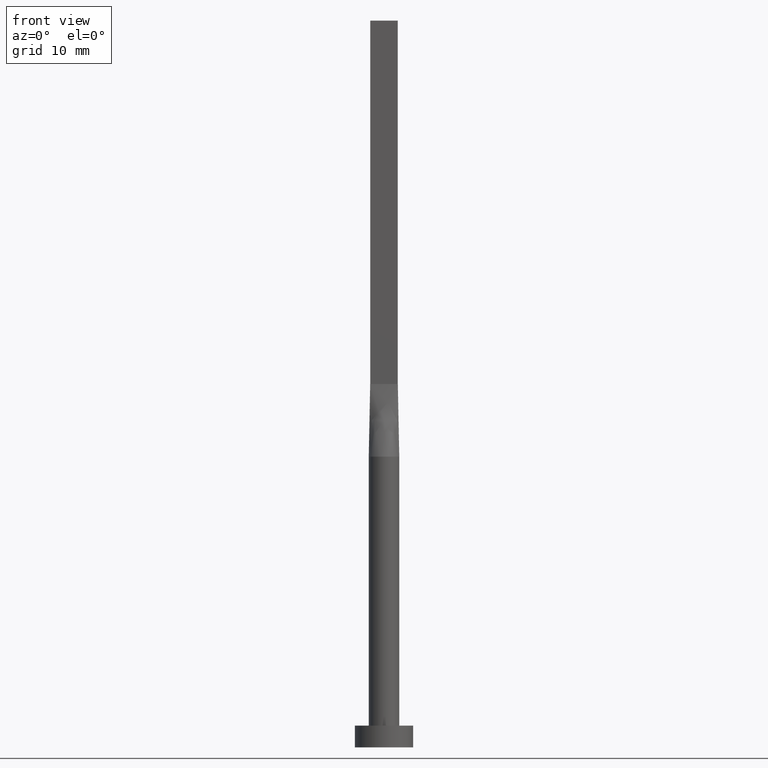
[diagram: clean part render]
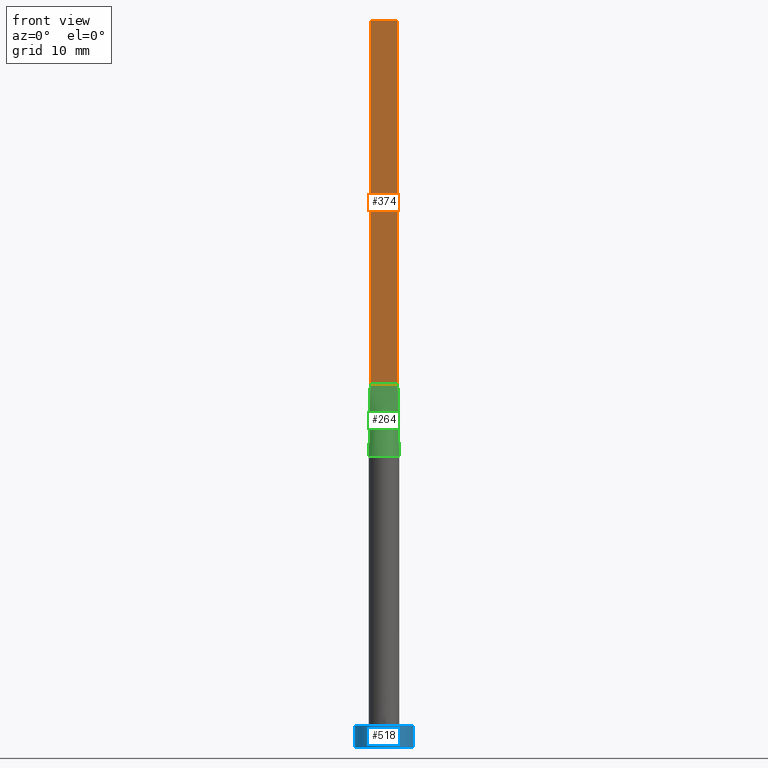
[diagram: same view with three faces highlighted in distinct colors, each labeled with its STEP entity id]
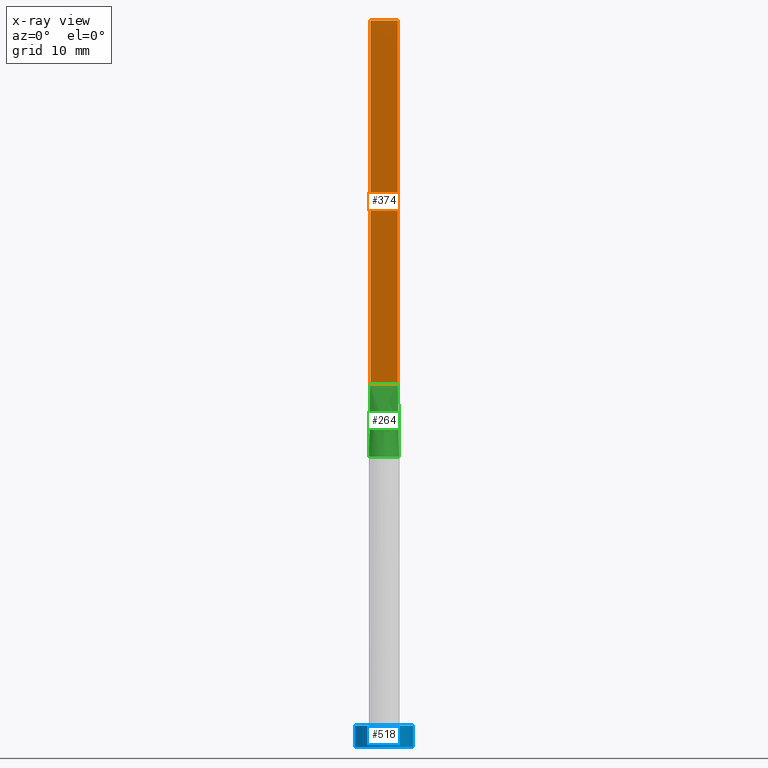
[diagram: x-ray of the same camera — body ghosted, the three highlighted faces saturated]
A machine part, front view with three faces highlighted in distinct colors.
The next image is the same camera in x-ray (body ghosted, the three faces saturated) — at least one of them is partly hidden behind the body in this view.
Their STEP definitions:

[orange] entity #374 — the highlighted planar face has unit normal (0, 1, -0).
#38 = CARTESIAN_POINT ( 'NONE',  ( -1.899999999999999911, -0.2499999999999995837, 100.0000000000000000 ) ) ;
#48 = EDGE_CURVE ( 'NONE', #213, #293, #372, .T. ) ;
#61 = ORIENTED_EDGE ( 'NONE', *, *, #208, .F. ) ;
#83 = LINE ( 'NONE', #453, #114 ) ;
#114 = VECTOR ( 'NONE', #500, 1000.000000000000000 ) ;
#117 = CARTESIAN_POINT ( 'NONE',  ( -1.899999999999999911, -0.2499999999999995837, 100.0000000000000000 ) ) ;
#155 = ORIENTED_EDGE ( 'NONE', *, *, #48, .F. ) ;
#165 = EDGE_CURVE ( 'NONE', #213, #467, #191, .T. ) ;
#184 = VECTOR ( 'NONE', #261, 1000.000000000000000 ) ;
#191 = LINE ( 'NONE', #367, #275 ) ;
#192 = PLANE ( 'NONE',  #319 ) ;
#208 = EDGE_CURVE ( 'NONE', #293, #212, #488, .T. ) ;
#212 = VERTEX_POINT ( 'NONE', #387 ) ;
#213 = VERTEX_POINT ( 'NONE', #117 ) ;
#234 = CARTESIAN_POINT ( 'NONE',  ( 1.899999999999999023, -0.2499999999999997780, 100.0000000000000000 ) ) ;
#261 = DIRECTION ( 'NONE',  ( -0.000000000000000000, -0.000000000000000000, -1.000000000000000000 ) ) ;
#270 = DIRECTION ( 'NONE',  ( -1.000000000000000000, 5.706327223607920020E-17, 0.000000000000000000 ) ) ;
#275 = VECTOR ( 'NONE', #318, 1000.000000000000000 ) ;
#291 = EDGE_CURVE ( 'NONE', #467, #212, #83, .T. ) ;
#293 = VERTEX_POINT ( 'NONE', #234 ) ;
#295 = VECTOR ( 'NONE', #324, 1000.000000000000000 ) ;
#296 = ORIENTED_EDGE ( 'NONE', *, *, #291, .T. ) ;
#318 = DIRECTION ( 'NONE',  ( -0.000000000000000000, -0.000000000000000000, -1.000000000000000000 ) ) ;
#319 = AXIS2_PLACEMENT_3D ( 'NONE', #38, #368, #270 ) ;
#324 = DIRECTION ( 'NONE',  ( 1.000000000000000000, -5.706327223607920020E-17, 0.000000000000000000 ) ) ;
#337 = CARTESIAN_POINT ( 'NONE',  ( 1.899999999999999023, -0.2499999999999997780, 100.0000000000000000 ) ) ;
#367 = CARTESIAN_POINT ( 'NONE',  ( -1.899999999999999911, -0.2499999999999995837, 100.0000000000000000 ) ) ;
#368 = DIRECTION ( 'NONE',  ( 5.706327223607920020E-17, 1.000000000000000000, -0.000000000000000000 ) ) ;
#372 = LINE ( 'NONE', #550, #295 ) ;
#374 = ADVANCED_FACE ( 'NONE', ( #398 ), #192, .F. ) ;
#387 = CARTESIAN_POINT ( 'NONE',  ( 1.899999999999999023, -0.2499999999999997780, 50.00000000000000000 ) ) ;
#398 = FACE_OUTER_BOUND ( 'NONE', #426, .T. ) ;
#399 = ORIENTED_EDGE ( 'NONE', *, *, #165, .T. ) ;
#426 = EDGE_LOOP ( 'NONE', ( #296, #61, #155, #399 ) ) ;
#453 = CARTESIAN_POINT ( 'NONE',  ( -1.899999999999999911, -0.2499999999999995837, 50.00000000000000000 ) ) ;
#467 = VERTEX_POINT ( 'NONE', #547 ) ;
#488 = LINE ( 'NONE', #337, #184 ) ;
#500 = DIRECTION ( 'NONE',  ( 1.000000000000000000, -5.706327223607918787E-17, 0.000000000000000000 ) ) ;
#547 = CARTESIAN_POINT ( 'NONE',  ( -1.899999999999999911, -0.2499999999999995837, 50.00000000000000000 ) ) ;
#550 = CARTESIAN_POINT ( 'NONE',  ( -1.899999999999999911, -0.2499999999999995837, 100.0000000000000000 ) ) ;

[blue] entity #518 — the highlighted cylindrical surface (edge-blend (fillet) strip) has radius 4 mm, axis along (-0, -0, -1).
#5 = DIRECTION ( 'NONE',  ( -0.000000000000000000, -0.000000000000000000, -1.000000000000000000 ) ) ;
#35 = CARTESIAN_POINT ( 'NONE',  ( 0.000000000000000000, 0.000000000000000000, 3.000000000000000000 ) ) ;
#42 = VERTEX_POINT ( 'NONE', #280 ) ;
#56 = DIRECTION ( 'NONE',  ( 1.000000000000000000, 0.000000000000000000, 0.000000000000000000 ) ) ;
#58 = VERTEX_POINT ( 'NONE', #513 ) ;
#66 = CYLINDRICAL_SURFACE ( 'NONE', #403, 4.000000000000000000 ) ;
#67 = EDGE_CURVE ( 'NONE', #42, #441, #141, .T. ) ;
#78 = FACE_OUTER_BOUND ( 'NONE', #101, .T. ) ;
#97 = CARTESIAN_POINT ( 'NONE',  ( 0.000000000000000000, 0.000000000000000000, 3.000000000000000000 ) ) ;
#99 = VECTOR ( 'NONE', #404, 1000.000000000000000 ) ;
#101 = EDGE_LOOP ( 'NONE', ( #414, #430, #313, #288 ) ) ;
#112 = LINE ( 'NONE', #459, #99 ) ;
#131 = CARTESIAN_POINT ( 'NONE',  ( 4.000000000000000000, 4.898587196589412829E-16, 0.000000000000000000 ) ) ;
#135 = LINE ( 'NONE', #229, #238 ) ;
#141 = CIRCLE ( 'NONE', #360, 4.000000000000000000 ) ;
#158 = DIRECTION ( 'NONE',  ( -0.000000000000000000, -0.000000000000000000, -1.000000000000000000 ) ) ;
#170 = DIRECTION ( 'NONE',  ( -1.000000000000000000, 0.000000000000000000, 0.000000000000000000 ) ) ;
#187 = EDGE_CURVE ( 'NONE', #441, #440, #112, .T. ) ;
#229 = CARTESIAN_POINT ( 'NONE',  ( -4.000000000000000000, 0.000000000000000000, 3.000000000000000000 ) ) ;
#238 = VECTOR ( 'NONE', #5, 1000.000000000000000 ) ;
#280 = CARTESIAN_POINT ( 'NONE',  ( -4.000000000000000000, 0.000000000000000000, 3.000000000000000000 ) ) ;
#283 = DIRECTION ( 'NONE',  ( 0.000000000000000000, 0.000000000000000000, 1.000000000000000000 ) ) ;
#288 = ORIENTED_EDGE ( 'NONE', *, *, #530, .T. ) ;
#297 = EDGE_CURVE ( 'NONE', #42, #58, #135, .T. ) ;
#312 = CARTESIAN_POINT ( 'NONE',  ( 4.000000000000000000, 4.898587196589412829E-16, 3.000000000000000000 ) ) ;
#313 = ORIENTED_EDGE ( 'NONE', *, *, #297, .T. ) ;
#350 = DIRECTION ( 'NONE',  ( 0.000000000000000000, 0.000000000000000000, 1.000000000000000000 ) ) ;
#360 = AXIS2_PLACEMENT_3D ( 'NONE', #97, #283, #56 ) ;
#361 = CIRCLE ( 'NONE', #554, 4.000000000000000000 ) ;
#403 = AXIS2_PLACEMENT_3D ( 'NONE', #35, #158, #170 ) ;
#404 = DIRECTION ( 'NONE',  ( -0.000000000000000000, -0.000000000000000000, -1.000000000000000000 ) ) ;
#414 = ORIENTED_EDGE ( 'NONE', *, *, #187, .F. ) ;
#430 = ORIENTED_EDGE ( 'NONE', *, *, #67, .F. ) ;
#440 = VERTEX_POINT ( 'NONE', #131 ) ;
#441 = VERTEX_POINT ( 'NONE', #312 ) ;
#459 = CARTESIAN_POINT ( 'NONE',  ( 4.000000000000000000, 4.898587196589412829E-16, 3.000000000000000000 ) ) ;
#490 = DIRECTION ( 'NONE',  ( 1.000000000000000000, 0.000000000000000000, 0.000000000000000000 ) ) ;
#513 = CARTESIAN_POINT ( 'NONE',  ( -4.000000000000000000, 0.000000000000000000, 0.000000000000000000 ) ) ;
#518 = ADVANCED_FACE ( 'NONE', ( #78 ), #66, .T. ) ;
#525 = CARTESIAN_POINT ( 'NONE',  ( 0.000000000000000000, 0.000000000000000000, 0.000000000000000000 ) ) ;
#530 = EDGE_CURVE ( 'NONE', #58, #440, #361, .T. ) ;
#554 = AXIS2_PLACEMENT_3D ( 'NONE', #525, #350, #490 ) ;

[green] entity #264 — the highlighted face is a freeform B-spline surface patch.
#13 = CARTESIAN_POINT ( 'NONE',  ( 2.059419575438525385, -0.4459762599261227201, 40.00000000000000711 ) ) ;
#33 = CARTESIAN_POINT ( 'NONE',  ( -0.6126365619873365143, -2.029890967560283865, 39.99999999999998579 ) ) ;
#44 = CARTESIAN_POINT ( 'NONE',  ( 1.719140910005029443, -1.233222546295088984, 39.99999999999999289 ) ) ;
#63 = CARTESIAN_POINT ( 'NONE',  ( 1.991027010319670776, -0.2619772381999571076, 45.00000000000000000 ) ) ;
#75 = EDGE_CURVE ( 'NONE', #335, #207, #285, .T. ) ;
#83 = LINE ( 'NONE', #453, #114 ) ;
#87 = CARTESIAN_POINT ( 'NONE',  ( -2.082216547150284924, -0.2739753355370637133, 40.00000000000000000 ) ) ;
#90 = LINE ( 'NONE', #469, #171 ) ;
#103 = CARTESIAN_POINT ( 'NONE',  ( 2.082054020639342085, -0.2739544763999143262, 40.00000000000000000 ) ) ;
#105 = B_SPLINE_SURFACE_WITH_KNOTS ( 'NONE', 3, 1, ( 
 ( #375, #552 ),
 ( #148, #326 ),
 ( #287, #129 ),
 ( #356, #535 ),
 ( #223, #307 ),
 ( #533, #132 ),
 ( #575, #177 ),
 ( #33, #218 ),
 ( #395, #391 ),
 ( #570, #168 ),
 ( #345, #174 ),
 ( #125, #180 ),
 ( #310, #269 ),
 ( #44, #358 ),
 ( #271, #447 ),
 ( #450, #417 ),
 ( #13, #147 ),
 ( #103, #421 ) ),
 .UNSPECIFIED., .F., .F., .F.,
 ( 4, 2, 2, 2, 2, 2, 2, 2, 4 ),
 ( 2, 2 ),
 ( 0.000000000000000000, 0.1249999999999999722, 0.2500000000000000000, 0.3750000000000000000, 0.5000000000000000000, 0.6250000000000001110, 0.7500000000000000000, 0.8750000000000000000, 1.000000000000000000 ),
 ( 0.000000000000000000, 1.000000000000000000 ),
 .UNSPECIFIED. ) ;
#114 = VECTOR ( 'NONE', #500, 1000.000000000000000 ) ;
#116 = LINE ( 'NONE', #63, #425 ) ;
#125 = CARTESIAN_POINT ( 'NONE',  ( 1.144666002056101028, -1.784802689656028507, 40.00000000000000000 ) ) ;
#129 = CARTESIAN_POINT ( 'NONE',  ( -1.583333333333335258, -0.2499999999999995837, 50.00000000000000000 ) ) ;
#132 = CARTESIAN_POINT ( 'NONE',  ( -0.7916666666666716257, -0.2499999999999995837, 50.00000000000000000 ) ) ;
#145 = CARTESIAN_POINT ( 'NONE',  ( 2.082216499796571085, -0.2739752411676472654, 40.00000000000000000 ) ) ;
#147 = CARTESIAN_POINT ( 'NONE',  ( 1.741666666666664698, -0.2499999999999997780, 50.00000000000000000 ) ) ;
#148 = CARTESIAN_POINT ( 'NONE',  ( -2.059419575438525385, -0.4459762599261209992, 40.00000000000000000 ) ) ;
#164 = ORIENTED_EDGE ( 'NONE', *, *, #75, .T. ) ;
#168 = CARTESIAN_POINT ( 'NONE',  ( 0.1583333333333272475, -0.2499999999999996669, 50.00000000000000000 ) ) ;
#171 = VECTOR ( 'NONE', #549, 1000.000000000000114 ) ;
#174 = CARTESIAN_POINT ( 'NONE',  ( 0.3166666666666607677, -0.2499999999999996669, 50.00000000000000000 ) ) ;
#177 = CARTESIAN_POINT ( 'NONE',  ( -0.6333333333333387438, -0.2499999999999995837, 50.00000000000000000 ) ) ;
#180 = CARTESIAN_POINT ( 'NONE',  ( 0.6333333333333278636, -0.2499999999999996669, 50.00000000000000000 ) ) ;
#196 = EDGE_CURVE ( 'NONE', #467, #335, #90, .T. ) ;
#199 = FACE_OUTER_BOUND ( 'NONE', #386, .T. ) ;
#207 = VERTEX_POINT ( 'NONE', #145 ) ;
#212 = VERTEX_POINT ( 'NONE', #387 ) ;
#218 = CARTESIAN_POINT ( 'NONE',  ( -0.3166666666666726471, -0.2499999999999995837, 50.00000000000000000 ) ) ;
#220 = DIRECTION ( 'NONE',  ( -0.01820233363815273661, 0.002395043899757038752, 0.9998314552037476099 ) ) ;
#223 = CARTESIAN_POINT ( 'NONE',  ( -1.719140910005030998, -1.233222546295087652, 39.99999999999998579 ) ) ;
#241 = CARTESIAN_POINT ( 'NONE',  ( 0.000000000000000000, 0.000000000000000000, 40.00000000000000000 ) ) ;
#264 = ADVANCED_FACE ( 'NONE', ( #199 ), #105, .T. ) ;
#269 = CARTESIAN_POINT ( 'NONE',  ( 0.7916666666666614116, -0.2499999999999996669, 50.00000000000000000 ) ) ;
#271 = CARTESIAN_POINT ( 'NONE',  ( 1.843490440271193354, -1.028323931880311459, 39.99999999999999289 ) ) ;
#285 = CIRCLE ( 'NONE', #402, 2.100000000000000089 ) ;
#287 = CARTESIAN_POINT ( 'NONE',  ( -2.013179673790353341, -0.6348343983169372207, 40.00000000000000000 ) ) ;
#291 = EDGE_CURVE ( 'NONE', #467, #212, #83, .T. ) ;
#307 = CARTESIAN_POINT ( 'NONE',  ( -1.108333333333337167, -0.2499999999999995837, 50.00000000000000000 ) ) ;
#310 = CARTESIAN_POINT ( 'NONE',  ( 1.370324685961208599, -1.611984358543463447, 39.99999999999999289 ) ) ;
#326 = CARTESIAN_POINT ( 'NONE',  ( -1.741666666666667584, -0.2499999999999995837, 50.00000000000000000 ) ) ;
#335 = VERTEX_POINT ( 'NONE', #87 ) ;
#345 = CARTESIAN_POINT ( 'NONE',  ( 0.6126365619873340718, -2.029890967560283865, 39.99999999999998579 ) ) ;
#356 = CARTESIAN_POINT ( 'NONE',  ( -1.843490440271193354, -1.028323931880309461, 39.99999999999997868 ) ) ;
#358 = CARTESIAN_POINT ( 'NONE',  ( 1.108333333333328730, -0.2499999999999996669, 50.00000000000000000 ) ) ;
#375 = CARTESIAN_POINT ( 'NONE',  ( -2.082054020639342529, -0.2739544763999126609, 40.00000000000000000 ) ) ;
#386 = EDGE_LOOP ( 'NONE', ( #164, #491, #558, #482 ) ) ;
#387 = CARTESIAN_POINT ( 'NONE',  ( 1.899999999999999023, -0.2499999999999997780, 50.00000000000000000 ) ) ;
#391 = CARTESIAN_POINT ( 'NONE',  ( -0.1583333333333395432, -0.2499999999999996392, 50.00000000000000000 ) ) ;
#395 = CARTESIAN_POINT ( 'NONE',  ( -0.3069641454662052071, -2.100000000000000089, 40.00000000000000000 ) ) ;
#402 = AXIS2_PLACEMENT_3D ( 'NONE', #241, #415, #465 ) ;
#415 = DIRECTION ( 'NONE',  ( 0.000000000000000000, 0.000000000000000000, 1.000000000000000000 ) ) ;
#417 = CARTESIAN_POINT ( 'NONE',  ( 1.583333333333330595, -0.2499999999999997224, 50.00000000000000000 ) ) ;
#421 = CARTESIAN_POINT ( 'NONE',  ( 1.899999999999999023, -0.2499999999999997780, 50.00000000000000000 ) ) ;
#425 = VECTOR ( 'NONE', #220, 1000.000000000000114 ) ;
#447 = CARTESIAN_POINT ( 'NONE',  ( 1.266666666666662611, -0.2499999999999996669, 50.00000000000000000 ) ) ;
#450 = CARTESIAN_POINT ( 'NONE',  ( 2.013179673790352897, -0.6348343983169382199, 39.99999999999997868 ) ) ;
#453 = CARTESIAN_POINT ( 'NONE',  ( -1.899999999999999911, -0.2499999999999995837, 50.00000000000000000 ) ) ;
#465 = DIRECTION ( 'NONE',  ( 1.000000000000000000, 0.000000000000000000, 0.000000000000000000 ) ) ;
#467 = VERTEX_POINT ( 'NONE', #547 ) ;
#469 = CARTESIAN_POINT ( 'NONE',  ( -1.991027010319671220, -0.2619772381999561084, 45.00000000000000000 ) ) ;
#482 = ORIENTED_EDGE ( 'NONE', *, *, #196, .T. ) ;
#491 = ORIENTED_EDGE ( 'NONE', *, *, #555, .T. ) ;
#500 = DIRECTION ( 'NONE',  ( 1.000000000000000000, -5.706327223607918787E-17, 0.000000000000000000 ) ) ;
#533 = CARTESIAN_POINT ( 'NONE',  ( -1.370324685961210820, -1.611984358543462337, 40.00000000000000000 ) ) ;
#535 = CARTESIAN_POINT ( 'NONE',  ( -1.266666666666670160, -0.2499999999999995837, 50.00000000000000000 ) ) ;
#547 = CARTESIAN_POINT ( 'NONE',  ( -1.899999999999999911, -0.2499999999999995837, 50.00000000000000000 ) ) ;
#549 = DIRECTION ( 'NONE',  ( -0.01820233363815268804, -0.002395043899756892601, -0.9998314552037476099 ) ) ;
#552 = CARTESIAN_POINT ( 'NONE',  ( -1.899999999999999911, -0.2499999999999995837, 50.00000000000000000 ) ) ;
#555 = EDGE_CURVE ( 'NONE', #207, #212, #116, .T. ) ;
#558 = ORIENTED_EDGE ( 'NONE', *, *, #291, .F. ) ;
#570 = CARTESIAN_POINT ( 'NONE',  ( 0.3069641454662038194, -2.100000000000000089, 40.00000000000000000 ) ) ;
#575 = CARTESIAN_POINT ( 'NONE',  ( -1.144666002056103249, -1.784802689656026953, 40.00000000000000000 ) ) ;